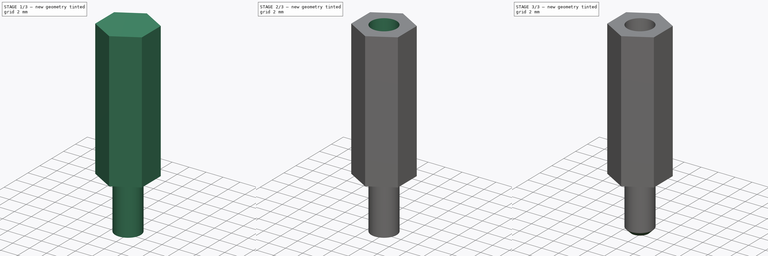
[diagram: build sequence overview — one tinted view per stage of 3, left to right]
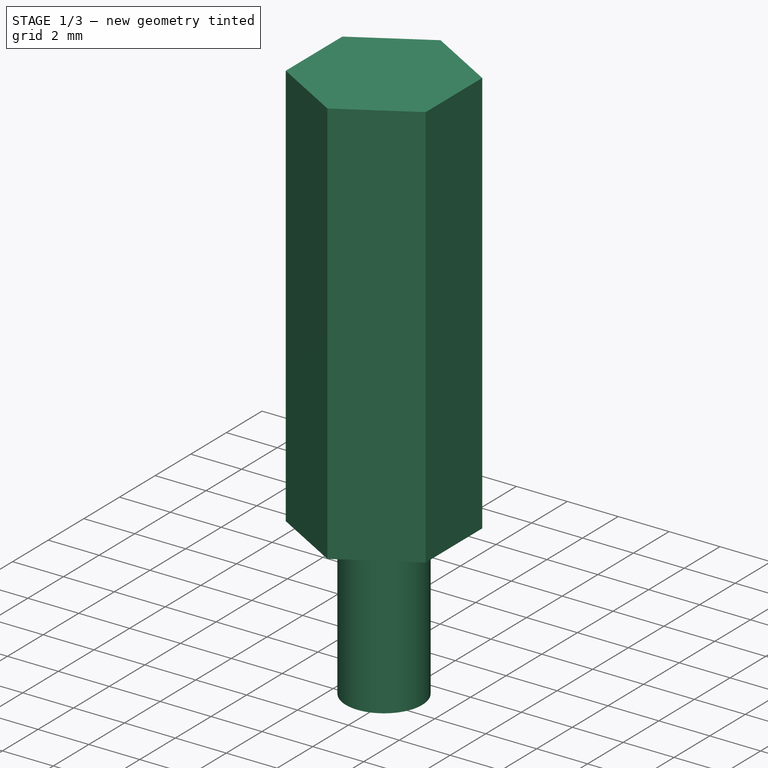
[diagram: stage 1 of 3 — iso view after this stage's code; geometry added in this stage tinted green]
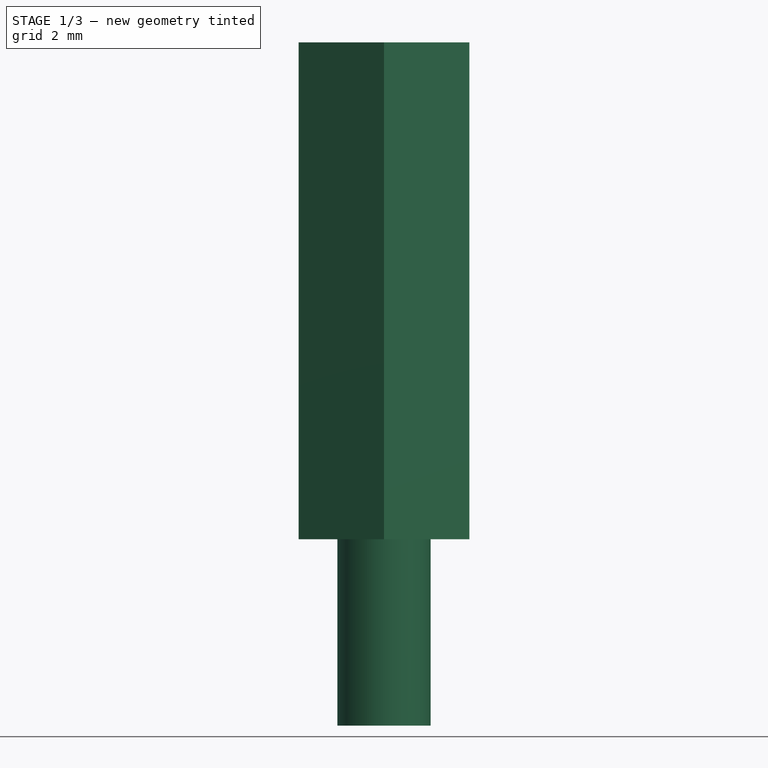
[diagram: stage 1 of 3 — front view after this stage's code; geometry added in this stage tinted green]
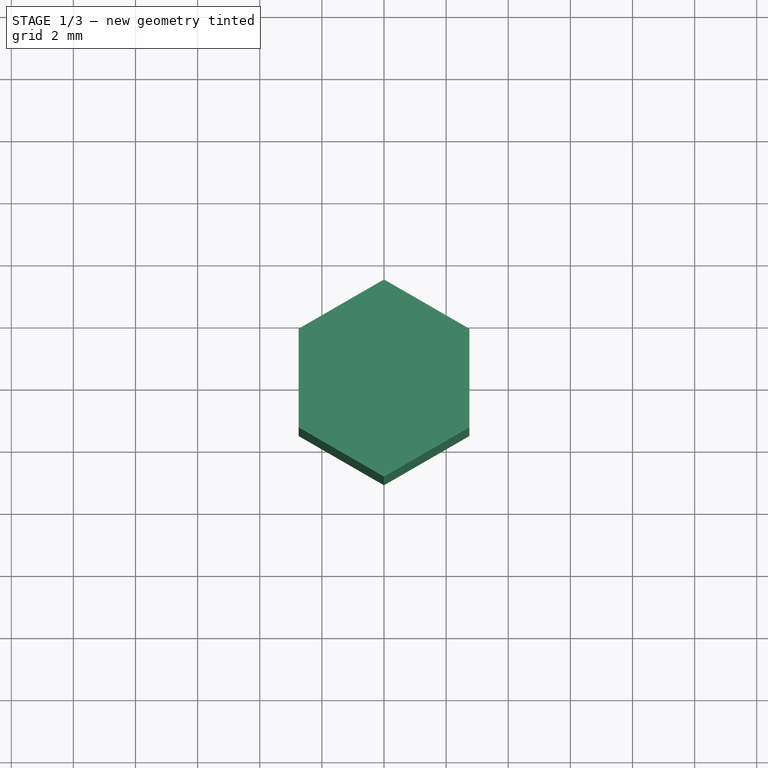
[diagram: stage 1 of 3 — top view after this stage's code; geometry added in this stage tinted green]
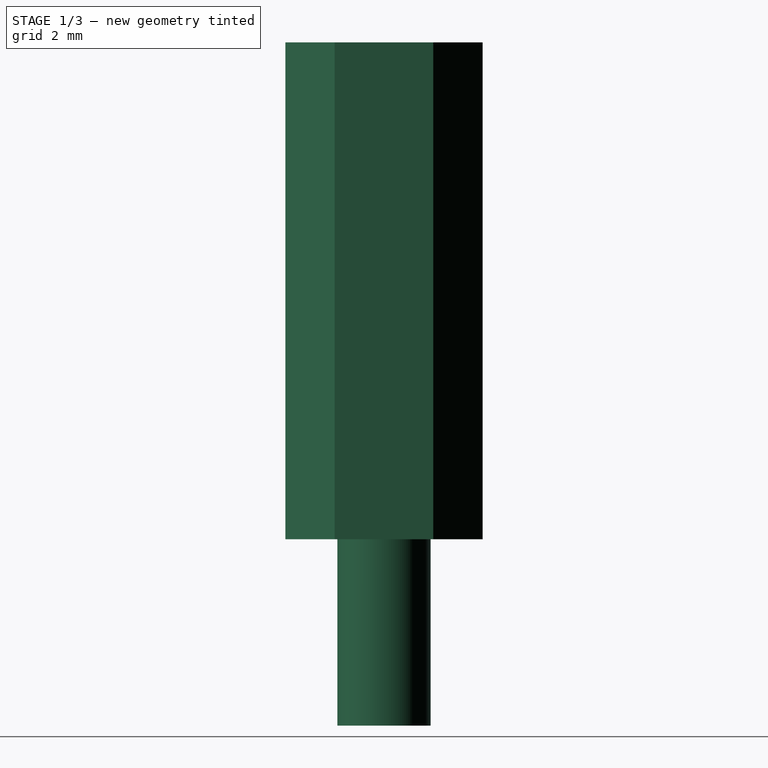
[diagram: stage 1 of 3 — right view after this stage's code; geometry added in this stage tinted green]
FCSTD DOCUMENT  (FreeCAD 0.18R16117 (Git))
Label: Hex-Standoff-M3-16mm-Male-Female
License: CC-BY 3.0
LicenseURL: http://creativecommons.org/licenses/by/3.0/
objects: Sketcher::SketchObject×3, PartDesign::Pad×2, PartDesign::Chamfer×2, PartDesign::Pocket×1
note: 11 computed .brp shape members not serialized (recipe doc carries the construction recipe); baked Part::Feature solids carry a one-line shape summary decoded from their .brp

FEATURE [Sketcher::SketchObject] Sketch
  MapMode = 5
  sketch-geometry (8):
    g0: LineSegment StartX=-2.75 StartY=-1.58771 StartZ=0 EndX=-2.75 EndY=1.58771 EndZ=0
    g1: LineSegment StartX=-2.75 StartY=1.58771 StartZ=0 EndX=0 EndY=3.17543 EndZ=0
    g2: LineSegment StartX=0 StartY=3.17543 StartZ=0 EndX=2.75 EndY=1.58771 EndZ=0
    g3: LineSegment StartX=2.75 StartY=1.58771 StartZ=0 EndX=2.75 EndY=-1.58771 EndZ=0
    g4: LineSegment StartX=2.75 StartY=-1.58771 StartZ=0 EndX=0 EndY=-3.17543 EndZ=0
    g5: LineSegment StartX=0 StartY=-3.17543 StartZ=0 EndX=-2.75 EndY=-1.58771 EndZ=0
    g6: LineSegment [constr] StartX=-2.75 StartY=1.58771 StartZ=0 EndX=2.75 EndY=-1.58771 EndZ=0
    g7: GeomPoint [constr] X=0 Y=0 Z=0
  constraints (22):
    c: Vertical(g0)
    c: Coincident(g0,g1)
    c: Coincident(g1,g2)
    c: Coincident(g2,g3)
    c: Vertical(g3)
    c: Coincident(g3,g4)
    c: Coincident(g4,g5)
    c: Coincident(g5,g0)
    c: PointOnObject(g4,g-2)
    c: PointOnObject(g1,g-2)
    c: Equal(g1,g2)
    c: Equal(g2,g3)
    c: Equal(g3,g4)
    c: Equal(g4,g5)
    c: Equal(g5,g0)
    c: DistanceX(g0,g3) = 5.5
    c: Distance(g4,g2) = 5.5
    c: Coincident(g6,g0)
    c: Coincident(g6,g3)
    c: PointOnObject(g7,g6)
    c: PointOnObject(g7,g-2)
    c: Coincident(g7,g-1)
FEATURE [PartDesign::Pad] Pad
  Length = 16
  Length2 = 4
  Profile = -> Sketch
  Type = 0
FEATURE [Sketcher::SketchObject] Sketch001
  MapMode = 5
  Placement = pos=(0,0,0) rot=(1,0,0;3.14159rad)
  Support = -> [Pad]
  sketch-geometry (1):
    g0: Circle CenterX=0 CenterY=0 CenterZ=0 NormalX=0 NormalY=0 NormalZ=1 AngleXU=0 Radius=1.5
  constraints (1):
    c: Radius(g0) = 1.5
FEATURE [PartDesign::Pad] Pad001
  Length = 6
  Length2 = 4
  Profile = -> Sketch001
  Type = 0
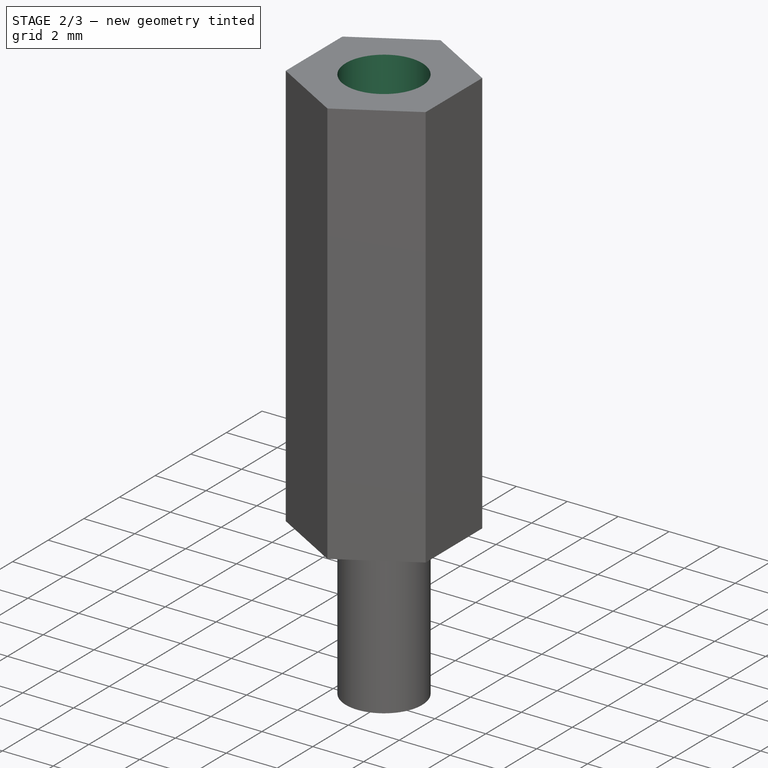
[diagram: stage 2 of 3 — iso view after this stage's code; geometry added in this stage tinted green]
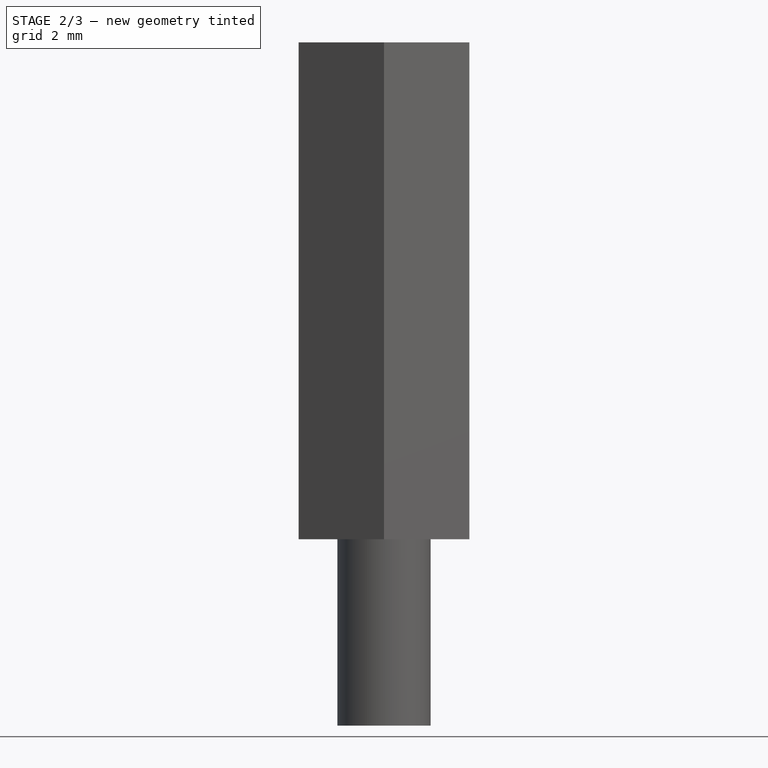
[diagram: stage 2 of 3 — front view after this stage's code; geometry added in this stage tinted green]
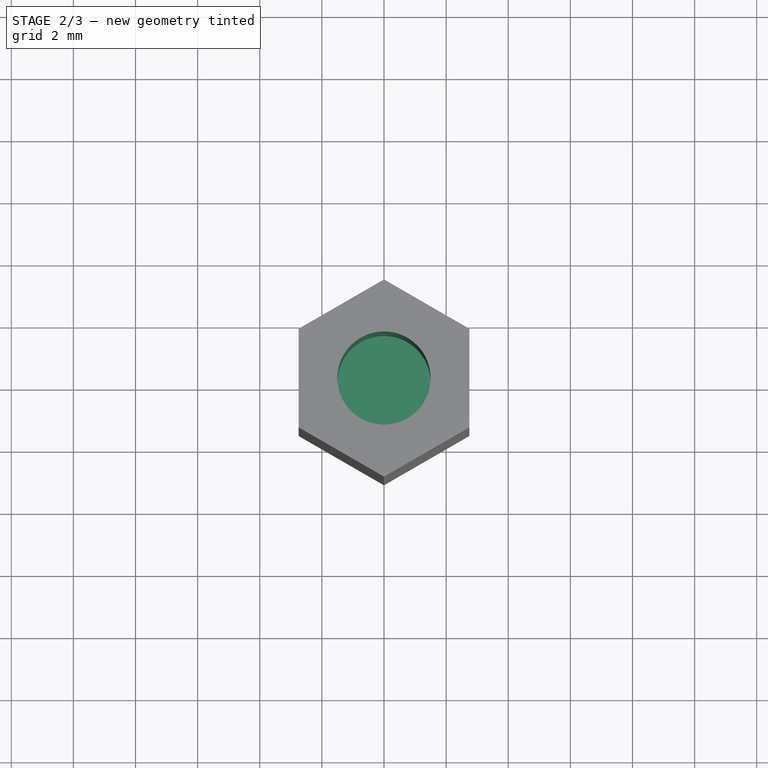
[diagram: stage 2 of 3 — top view after this stage's code; geometry added in this stage tinted green]
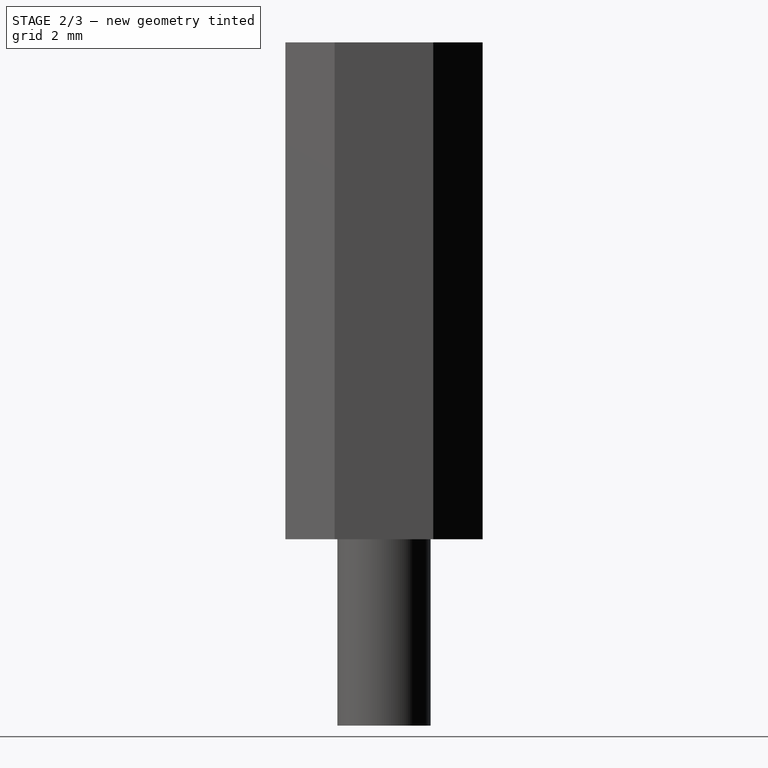
[diagram: stage 2 of 3 — right view after this stage's code; geometry added in this stage tinted green]
FEATURE [Sketcher::SketchObject] Sketch002
  MapMode = 5
  Placement = pos=(0,0,16) rot=(0,0,1;0rad)
  Support = -> [Pad001]
  sketch-geometry (1):
    g0: Circle CenterX=0 CenterY=0 CenterZ=0 NormalX=0 NormalY=0 NormalZ=1 AngleXU=0 Radius=1.5
  constraints (2):
    c: Coincident(g0,g-1)
    c: Radius(g0) = 1.5
FEATURE [PartDesign::Pocket] Pocket
  Length = 8.5
  Length2 = 100
  Profile = -> Sketch002
  Type = 0
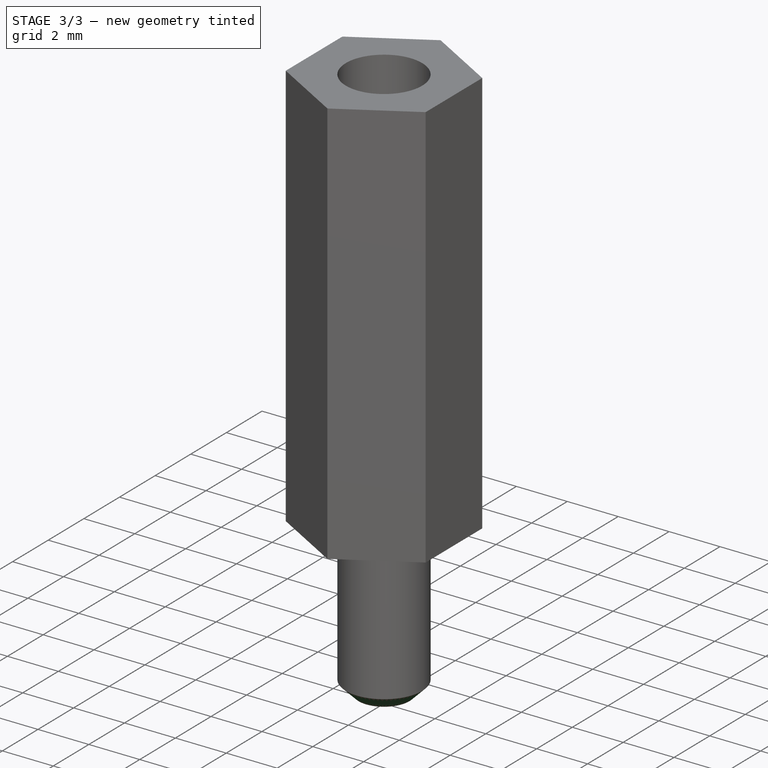
[diagram: stage 3 of 3 — iso view after this stage's code; geometry added in this stage tinted green]
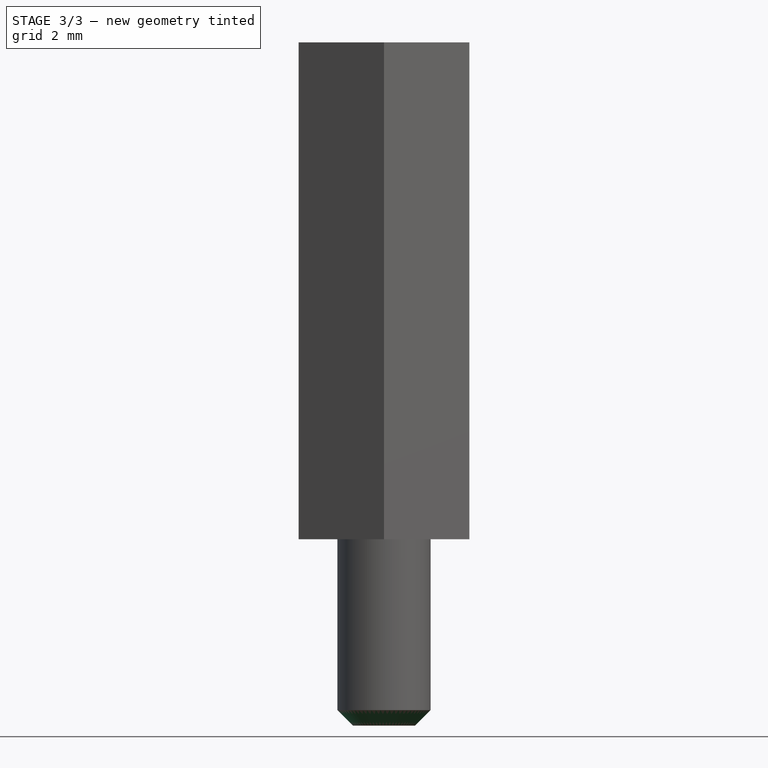
[diagram: stage 3 of 3 — front view after this stage's code; geometry added in this stage tinted green]
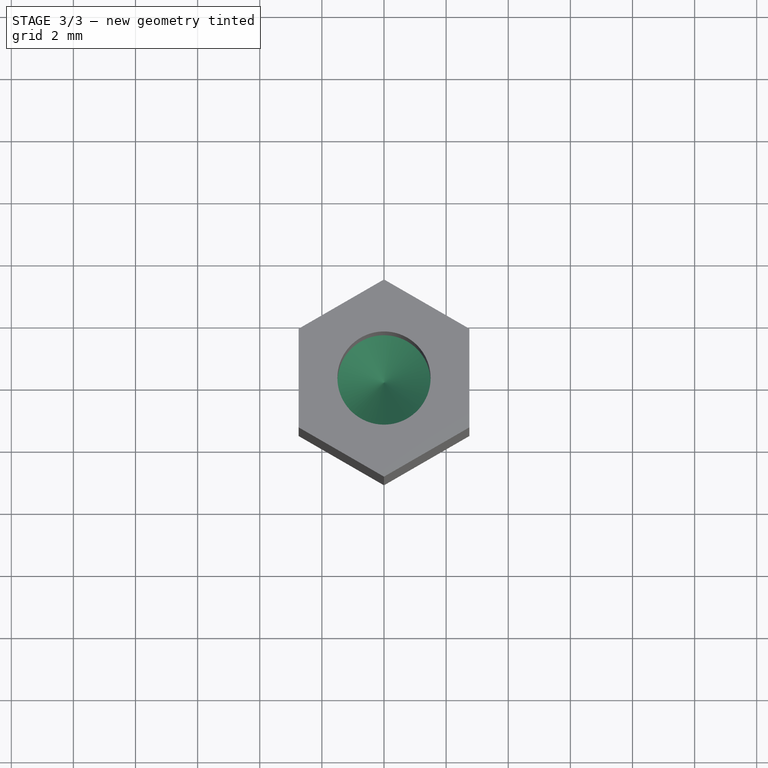
[diagram: stage 3 of 3 — top view after this stage's code; geometry added in this stage tinted green]
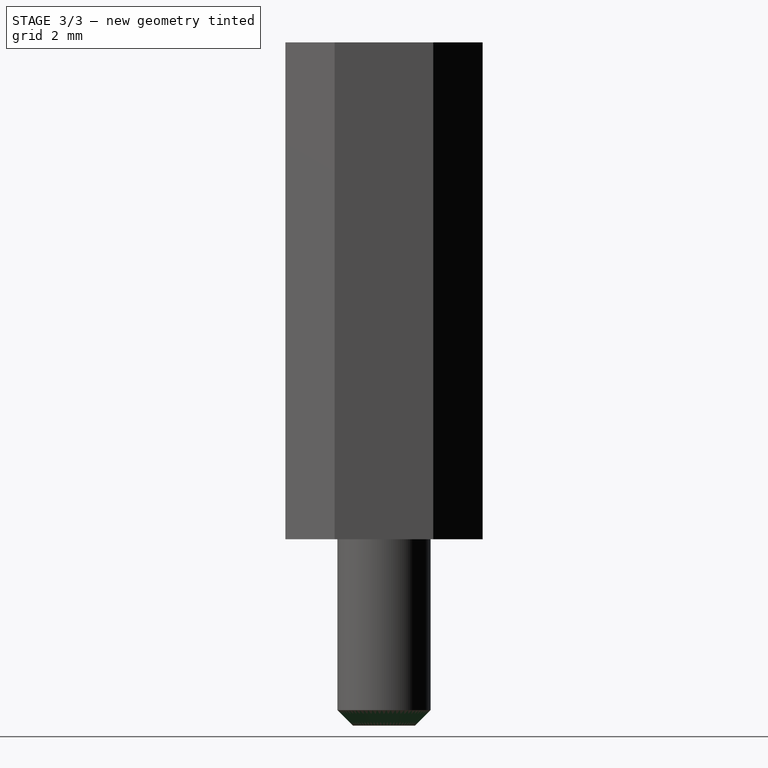
[diagram: stage 3 of 3 — right view after this stage's code; geometry added in this stage tinted green]
FEATURE [PartDesign::Chamfer] Chamfer
  Base = -> Pocket [Edge24]
  Size = 1.5
FEATURE [PartDesign::Chamfer] Chamfer001
  Base = -> Chamfer [Edge26]
  Size = 0.5
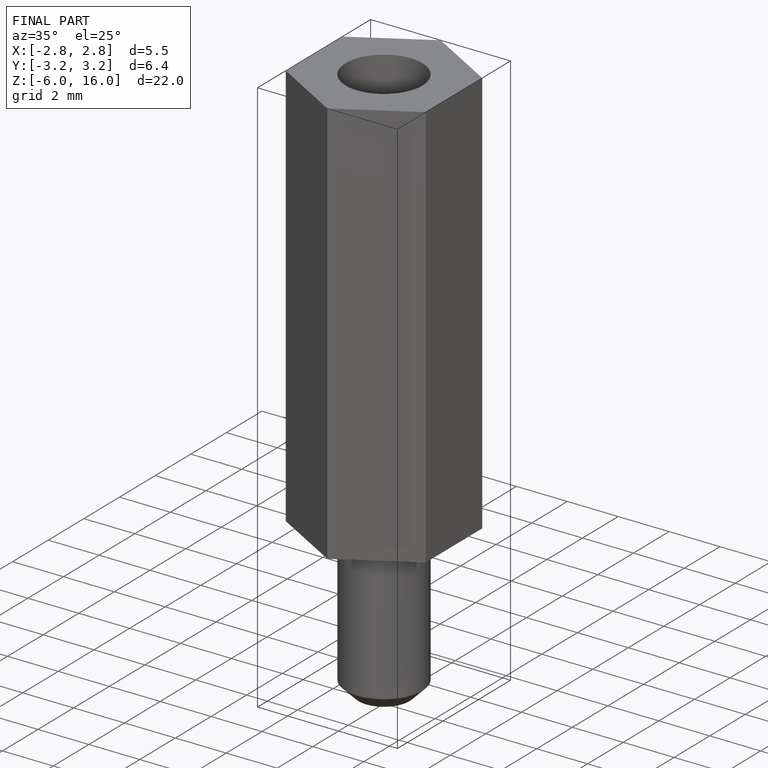
[diagram: finished part — iso view with bounding-box wireframe]
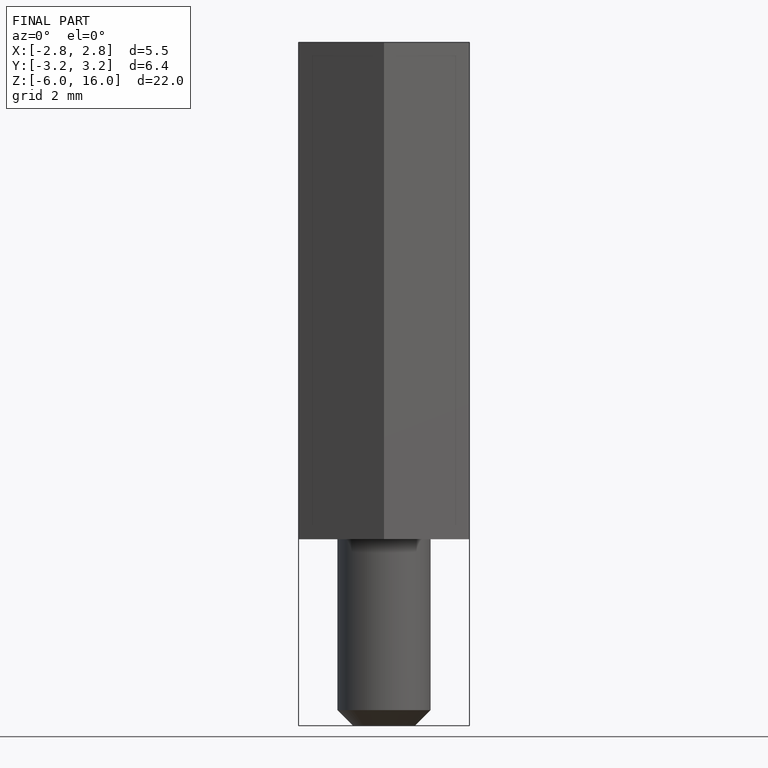
[diagram: finished part — front view with bounding-box wireframe]
